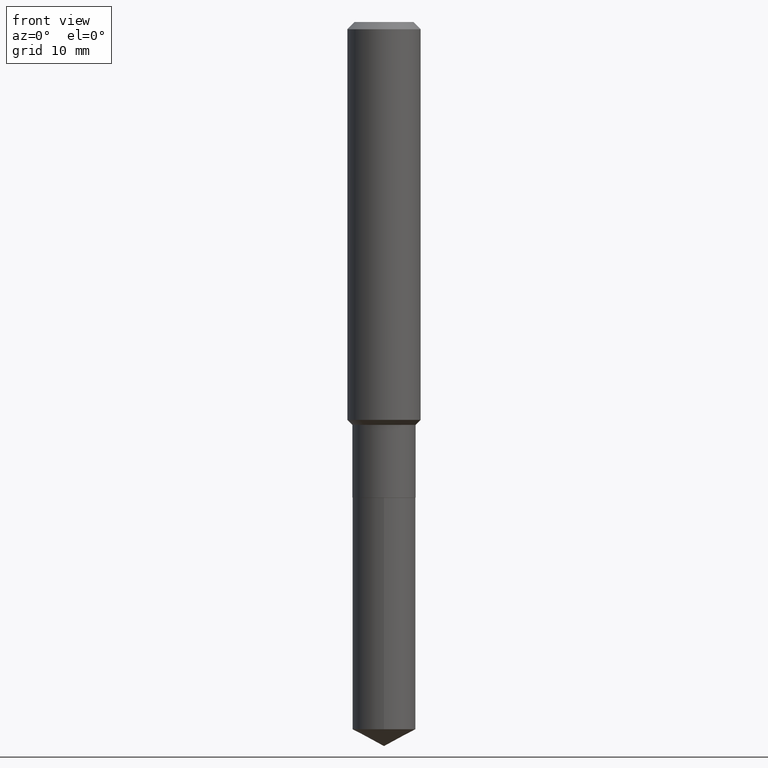
[diagram: clean part render]
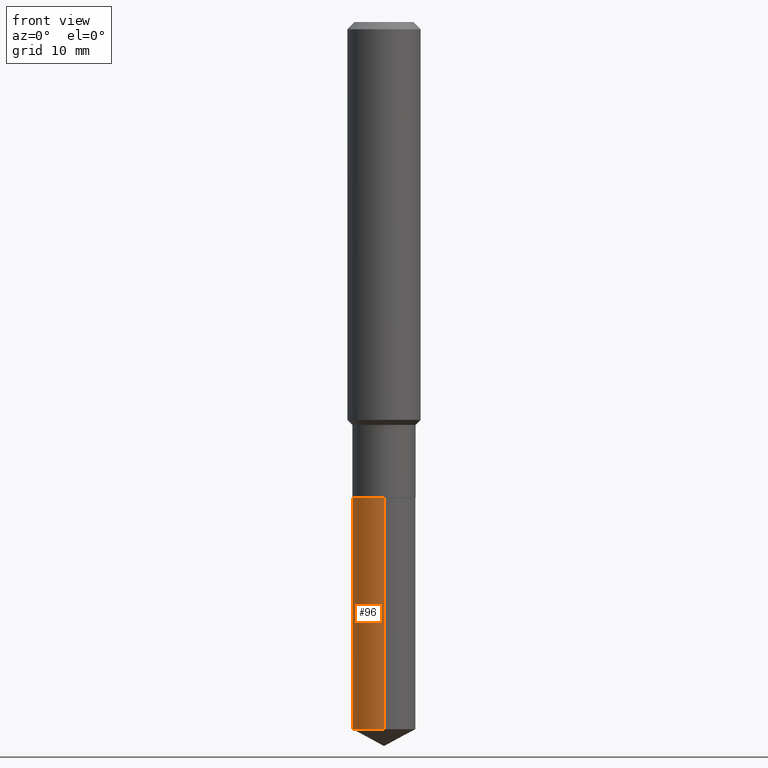
[diagram: same view with one face highlighted and labeled with its STEP entity id]
A machine part, front view. The second image highlights one B-rep face of the part: STEP entity #96.
In plain terms, the highlighted cylindrical surface (edge-blend (fillet) strip) has radius 3.4506 mm, axis along (-0, 0, 1).
Its self-contained STEP definition (entity closure, byte-faithful):
#7 = CYLINDRICAL_SURFACE ( 'NONE', #277, 0.1358499999999999985 ) ;
#12 = AXIS2_PLACEMENT_3D ( 'NONE', #445, #398, #102 ) ;
#33 = CIRCLE ( 'NONE', #426, 0.1358499999999999985 ) ;
#46 = CARTESIAN_POINT ( 'NONE',  ( -9.486354797636292620E-16, -0.1358500000000071317, -2.043299999999999450 ) ) ;
#57 = VECTOR ( 'NONE', #486, 39.37007874015748143 ) ;
#60 = CARTESIAN_POINT ( 'NONE',  ( -9.486354797636292620E-16, -0.1358500000000071317, -2.043299999999999450 ) ) ;
#62 = CIRCLE ( 'NONE', #12, 0.1358500000000000263 ) ;
#96 = ADVANCED_FACE ( 'NONE', ( #468 ), #7, .T. ) ;
#98 = EDGE_CURVE ( 'NONE', #487, #461, #33, .T. ) ;
#102 = DIRECTION ( 'NONE',  ( -6.982962677686265133E-15, -1.000000000000000000, 4.021859394426592341E-15 ) ) ;
#117 = VERTEX_POINT ( 'NONE', #374 ) ;
#129 = DIRECTION ( 'NONE',  ( -6.982962677686266711E-15, -1.000000000000000000, 4.021859394426593130E-15 ) ) ;
#132 = ORIENTED_EDGE ( 'NONE', *, *, #98, .F. ) ;
#149 = ORIENTED_EDGE ( 'NONE', *, *, #151, .T. ) ;
#151 = EDGE_CURVE ( 'NONE', #263, #461, #367, .T. ) ;
#164 = CARTESIAN_POINT ( 'NONE',  ( -9.486354797636052018E-16, -0.1358500000000106289, -3.037967273708788163 ) ) ;
#171 = DIRECTION ( 'NONE',  ( -2.445308632458337588E-29, 3.491710716736444138E-15, 1.000000000000000000 ) ) ;
#178 = EDGE_CURVE ( 'NONE', #117, #263, #62, .T. ) ;
#221 = DIRECTION ( 'NONE',  ( -2.445308632458337308E-29, 3.491710716736444138E-15, 1.000000000000000000 ) ) ;
#241 = ORIENTED_EDGE ( 'NONE', *, *, #412, .F. ) ;
#244 = DIRECTION ( 'NONE',  ( -2.445308632458337588E-29, 3.491710716736444138E-15, 1.000000000000000000 ) ) ;
#260 = LINE ( 'NONE', #480, #57 ) ;
#263 = VERTEX_POINT ( 'NONE', #164 ) ;
#277 = AXIS2_PLACEMENT_3D ( 'NONE', #430, #244, #129 ) ;
#283 = CARTESIAN_POINT ( 'NONE',  ( 4.996826411678089735E-29, -7.134143819658199685E-15, -2.043299999999999894 ) ) ;
#285 = VECTOR ( 'NONE', #221, 39.37007874015748143 ) ;
#359 = CARTESIAN_POINT ( 'NONE',  ( 9.652723065301704422E-16, 0.1358499999999928654, -2.043300000000000782 ) ) ;
#367 = LINE ( 'NONE', #60, #285 ) ;
#374 = CARTESIAN_POINT ( 'NONE',  ( 9.652723065301704422E-16, 0.1358499999999894237, -3.037967273708789051 ) ) ;
#379 = EDGE_LOOP ( 'NONE', ( #241, #474, #149, #132 ) ) ;
#398 = DIRECTION ( 'NONE',  ( -2.445308632458337588E-29, 3.491710716736444138E-15, 1.000000000000000000 ) ) ;
#412 = EDGE_CURVE ( 'NONE', #117, #487, #260, .T. ) ;
#426 = AXIS2_PLACEMENT_3D ( 'NONE', #283, #171, #435 ) ;
#430 = CARTESIAN_POINT ( 'NONE',  ( 4.996826411678089735E-29, -7.134143819658199685E-15, -2.043299999999999894 ) ) ;
#435 = DIRECTION ( 'NONE',  ( -6.982962677686266711E-15, -1.000000000000000000, 4.021859394426593130E-15 ) ) ;
#445 = CARTESIAN_POINT ( 'NONE',  ( 7.429094882501991014E-29, -1.060723419885419791E-14, -3.037967273708788607 ) ) ;
#461 = VERTEX_POINT ( 'NONE', #46 ) ;
#468 = FACE_OUTER_BOUND ( 'NONE', #379, .T. ) ;
#474 = ORIENTED_EDGE ( 'NONE', *, *, #178, .T. ) ;
#480 = CARTESIAN_POINT ( 'NONE',  ( 9.652723065301459875E-16, 0.1358499999999928654, -2.043300000000000782 ) ) ;
#486 = DIRECTION ( 'NONE',  ( -2.445308632458337308E-29, 3.491710716736444138E-15, 1.000000000000000000 ) ) ;
#487 = VERTEX_POINT ( 'NONE', #359 ) ;